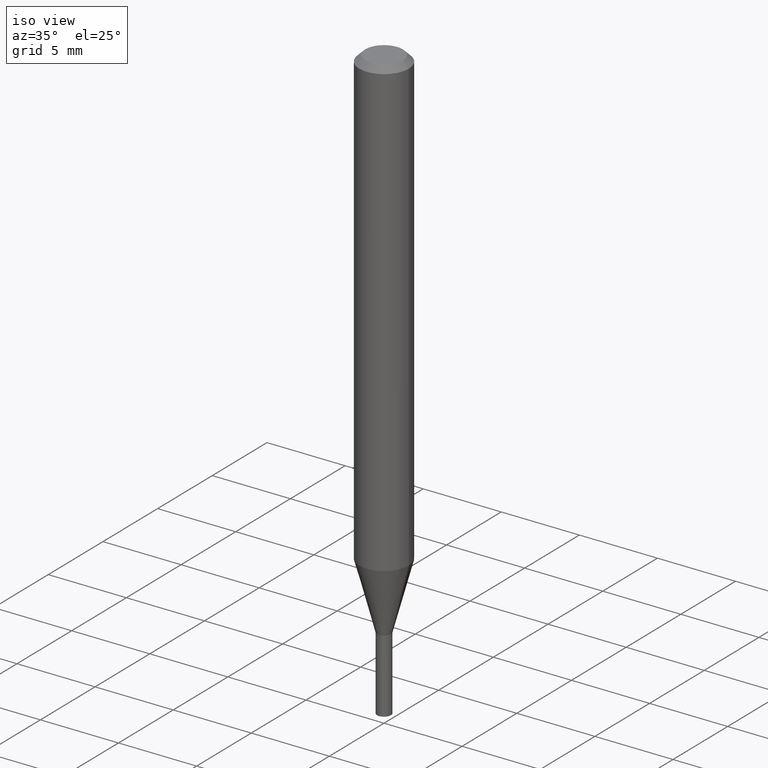
[diagram: clean part render]
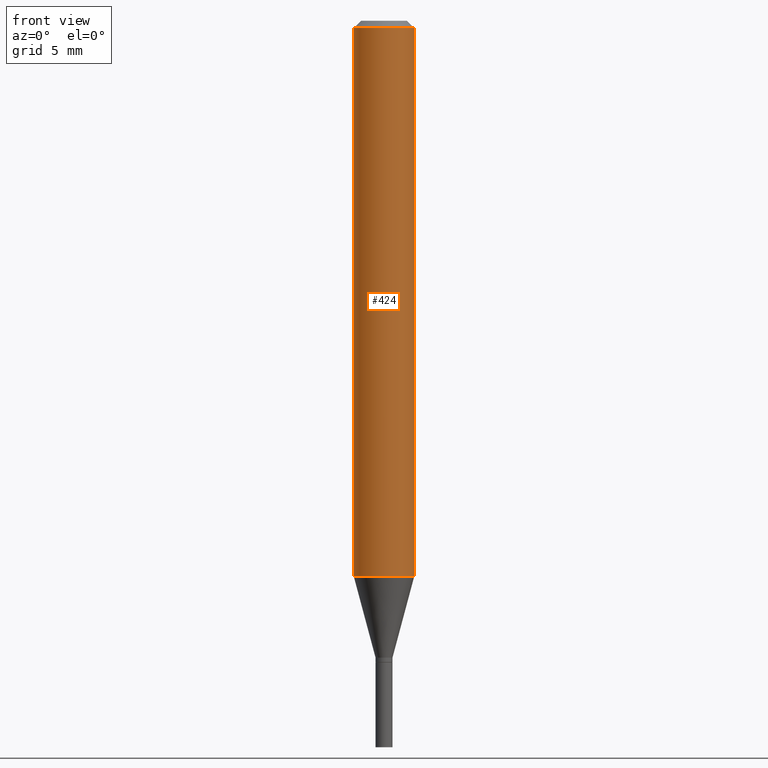
[diagram: tour spotlight — one face highlighted and labeled with its STEP entity id]
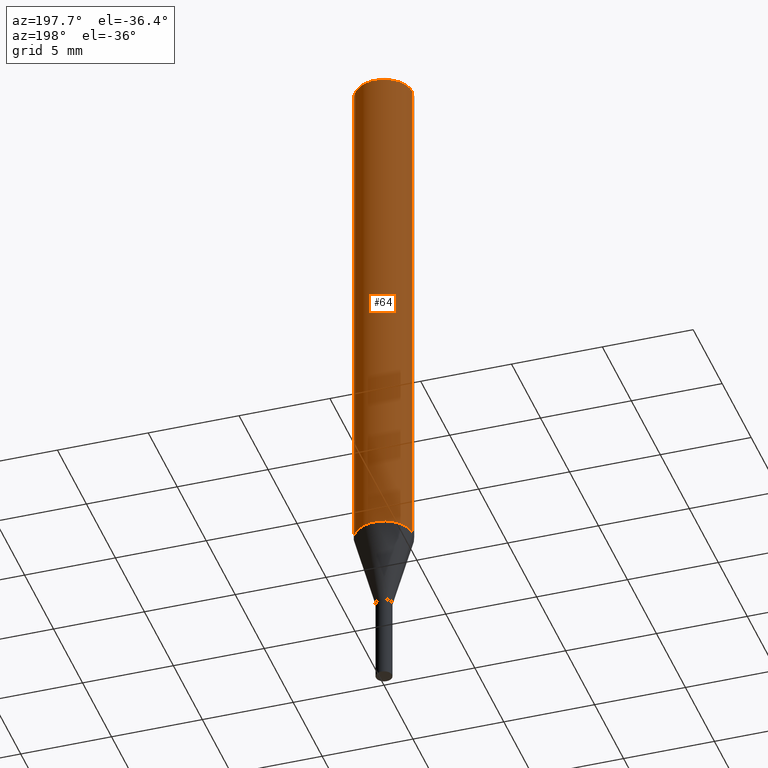
[diagram: tour spotlight — one face highlighted and labeled with its STEP entity id]
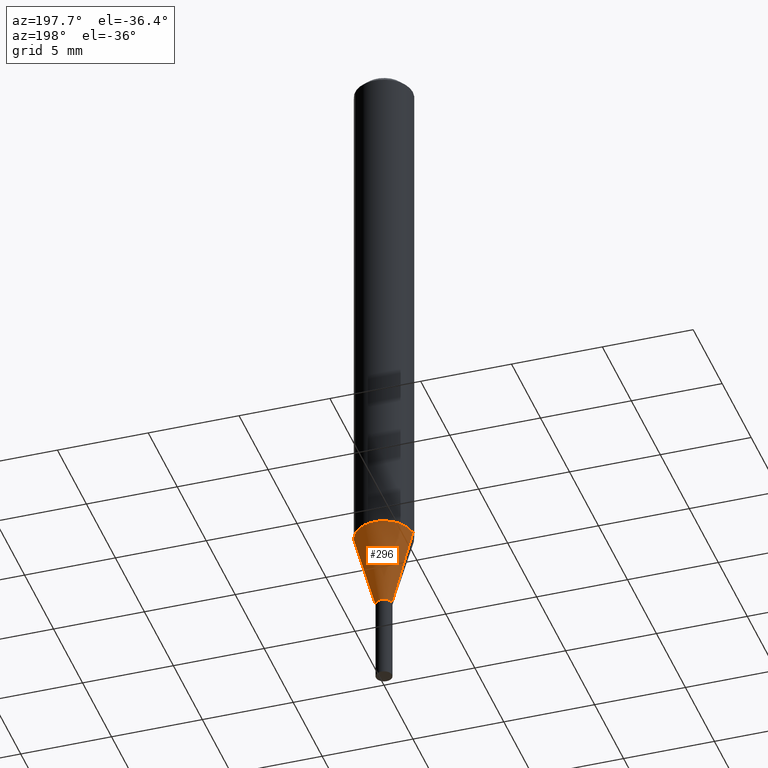
[diagram: tour spotlight — one face highlighted and labeled with its STEP entity id]
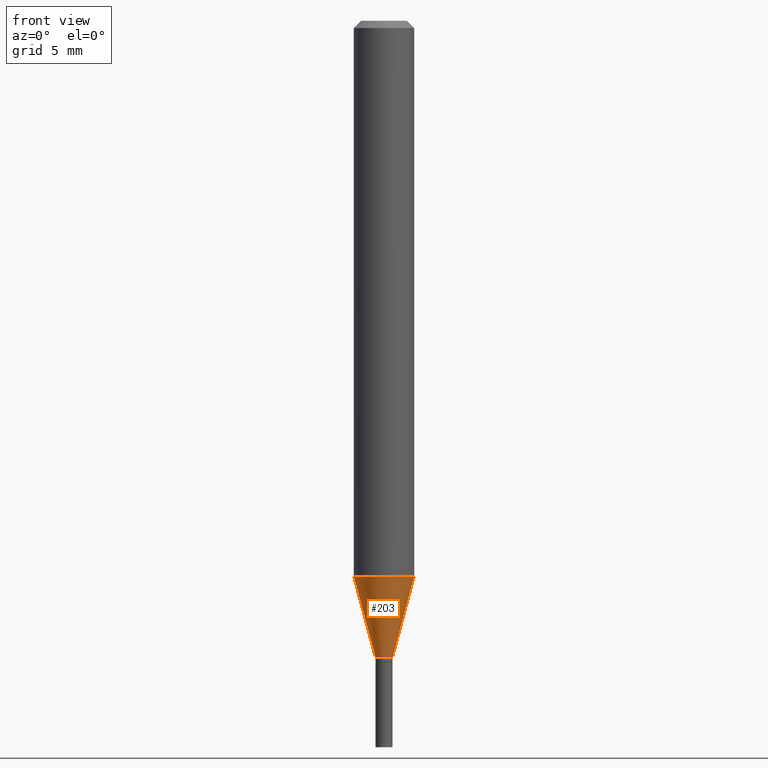
[diagram: tour spotlight — one face highlighted and labeled with its STEP entity id]
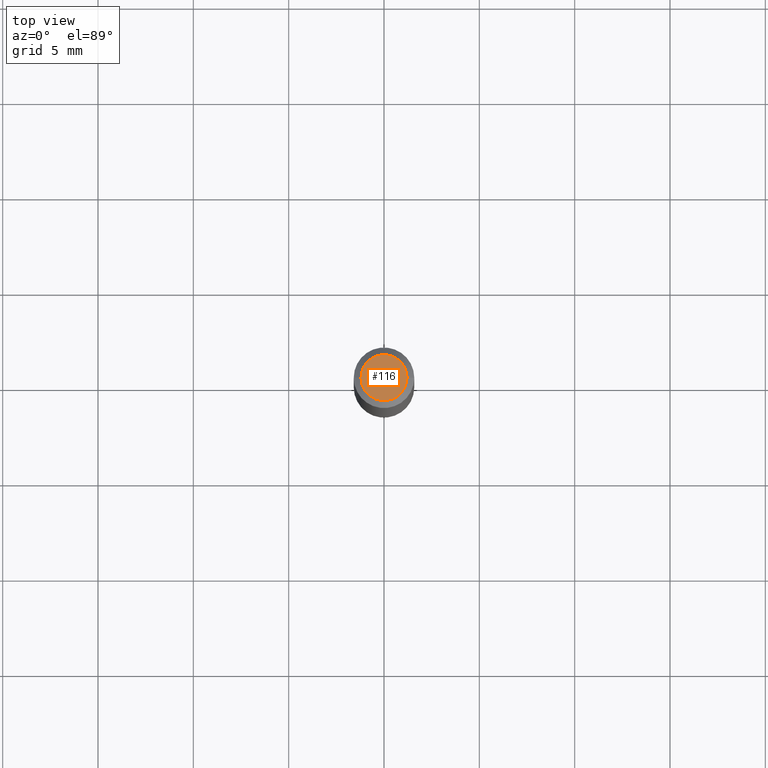
[diagram: tour spotlight — one face highlighted and labeled with its STEP entity id]
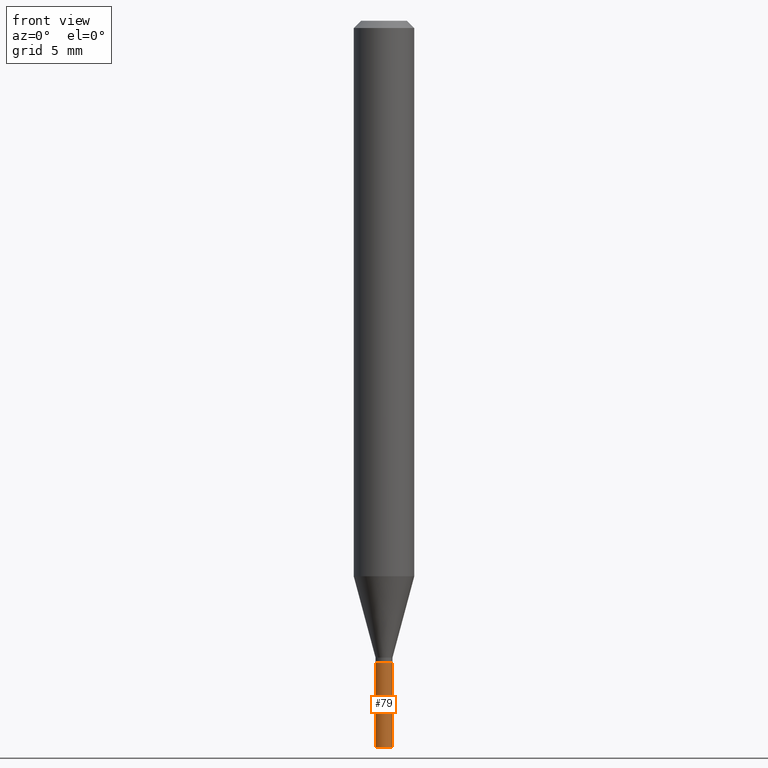
[diagram: tour spotlight — one face highlighted and labeled with its STEP entity id]
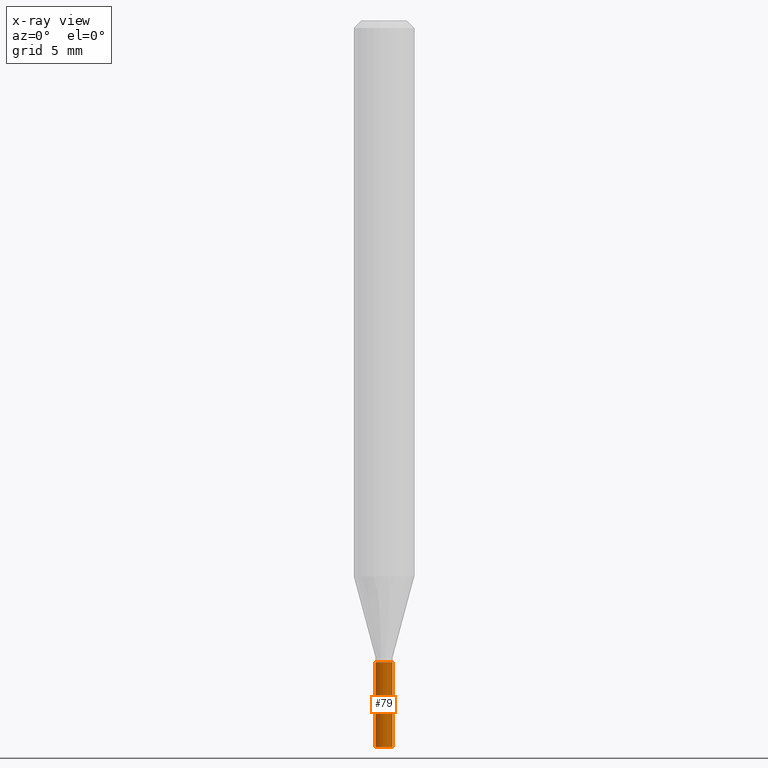
[diagram: x-ray of the same camera — body ghosted, this tour face saturated]
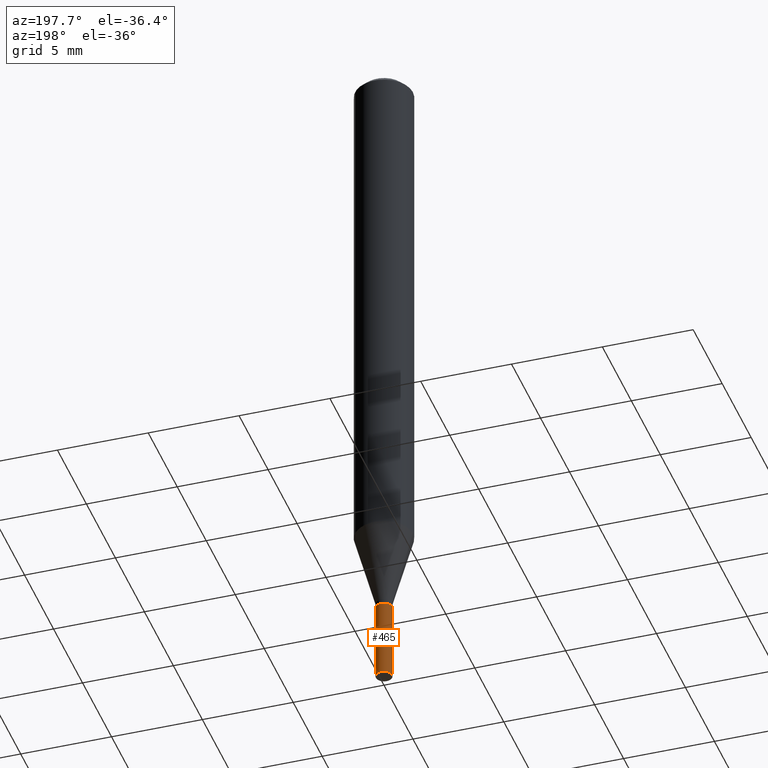
[diagram: tour spotlight — one face highlighted and labeled with its STEP entity id]
A machine part: a face-by-face anatomy tour. The part has 16 B-rep faces; the first image is the clean iso view, then the 7 largest visible faces are spotlighted one at a time (largest first), each with its STEP entity span.

Face 1 — front view, entity #424. In plain terms, the highlighted cylindrical surface (edge-blend (fillet) strip) has radius 1.5875 mm, axis along (-0, 0, 1).
Definition (entity closure, byte-faithful):
#3 = VERTEX_POINT ( 'NONE', #448 ) ;
#22 = FACE_OUTER_BOUND ( 'NONE', #402, .T. ) ;
#44 = ORIENTED_EDGE ( 'NONE', *, *, #172, .F. ) ;
#51 = DIRECTION ( 'NONE',  ( -2.445468806185136877E-29, 3.491481338843145188E-15, 1.000000000000000000 ) ) ;
#75 = LINE ( 'NONE', #276, #232 ) ;
#101 = DIRECTION ( 'NONE',  ( -2.445468806185136597E-29, 3.491481338843145583E-15, 1.000000000000000000 ) ) ;
#109 = EDGE_CURVE ( 'NONE', #285, #351, #149, .T. ) ;
#146 = EDGE_CURVE ( 'NONE', #351, #3, #75, .T. ) ;
#147 = CARTESIAN_POINT ( 'NONE',  ( -0.06250000000000000000, 4.440892098500626162E-16, -3.074334431409316114E-30 ) ) ;
#148 = CYLINDRICAL_SURFACE ( 'NONE', #162, 0.06250000000000000000 ) ;
#149 = CIRCLE ( 'NONE', #302, 0.06250000000000000000 ) ;
#162 = AXIS2_PLACEMENT_3D ( 'NONE', #185, #294, #404 ) ;
#166 = CARTESIAN_POINT ( 'NONE',  ( 2.805093857648105746E-29, -4.004930601817881115E-15, -1.147057713659400457 ) ) ;
#172 = EDGE_CURVE ( 'NONE', #221, #3, #413, .T. ) ;
#185 = CARTESIAN_POINT ( 'NONE',  ( 0.000000000000000000, 0.000000000000000000, 0.000000000000000000 ) ) ;
#221 = VERTEX_POINT ( 'NONE', #456 ) ;
#232 = VECTOR ( 'NONE', #237, 39.37007874015748143 ) ;
#237 = DIRECTION ( 'NONE',  ( -2.445468806185136877E-29, 3.491481338843145188E-15, 1.000000000000000000 ) ) ;
#241 = DIRECTION ( 'NONE',  ( 1.000000000000000000, -6.982962677686266711E-15, 0.000000000000000000 ) ) ;
#243 = ORIENTED_EDGE ( 'NONE', *, *, #279, .F. ) ;
#248 = ORIENTED_EDGE ( 'NONE', *, *, #146, .T. ) ;
#273 = DIRECTION ( 'NONE',  ( -2.445468806185136597E-29, 3.491481338843145583E-15, 1.000000000000000000 ) ) ;
#276 = CARTESIAN_POINT ( 'NONE',  ( 0.06250000000000000000, -4.364351673553916694E-16, 3.047610484872459871E-30 ) ) ;
#279 = EDGE_CURVE ( 'NONE', #285, #221, #439, .T. ) ;
#282 = CARTESIAN_POINT ( 'NONE',  ( 3.668203209277705088E-31, -5.237222008264718399E-17, -0.01499999999999999944 ) ) ;
#285 = VERTEX_POINT ( 'NONE', #444 ) ;
#287 = VECTOR ( 'NONE', #51, 39.37007874015748143 ) ;
#294 = DIRECTION ( 'NONE',  ( -2.445468806185136597E-29, 3.491481338843145583E-15, 1.000000000000000000 ) ) ;
#302 = AXIS2_PLACEMENT_3D ( 'NONE', #166, #101, #338 ) ;
#303 = CARTESIAN_POINT ( 'NONE',  ( 0.06250000000000000000, -4.441365769173271995E-15, -1.147057713659400457 ) ) ;
#310 = AXIS2_PLACEMENT_3D ( 'NONE', #282, #273, #241 ) ;
#338 = DIRECTION ( 'NONE',  ( 1.000000000000000000, -6.982962677686262766E-15, 0.000000000000000000 ) ) ;
#351 = VERTEX_POINT ( 'NONE', #303 ) ;
#366 = ORIENTED_EDGE ( 'NONE', *, *, #109, .T. ) ;
#402 = EDGE_LOOP ( 'NONE', ( #243, #366, #248, #44 ) ) ;
#404 = DIRECTION ( 'NONE',  ( 1.000000000000000000, -6.982962677686266711E-15, 4.876176775795935793E-29 ) ) ;
#413 = CIRCLE ( 'NONE', #310, 0.06250000000000000000 ) ;
#424 = ADVANCED_FACE ( 'NONE', ( #22 ), #148, .T. ) ;
#439 = LINE ( 'NONE', #147, #287 ) ;
#444 = CARTESIAN_POINT ( 'NONE',  ( -0.06250000000000000000, -3.560841391967817710E-15, -1.147057713659400457 ) ) ;
#448 = CARTESIAN_POINT ( 'NONE',  ( 0.06250000000000000000, -4.888073874380388472E-16, -0.01499999999999999944 ) ) ;
#456 = CARTESIAN_POINT ( 'NONE',  ( -0.06250000000000000000, -1.584562201100201481E-15, -0.01499999999999999944 ) ) ;

Face 2 — auxiliary view, entity #64. In plain terms, the highlighted cylindrical surface (edge-blend (fillet) strip) has radius 1.5875 mm, axis along (-0, 0, 1).
Definition (entity closure, byte-faithful):
#3 = VERTEX_POINT ( 'NONE', #448 ) ;
#26 = ORIENTED_EDGE ( 'NONE', *, *, #446, .F. ) ;
#28 = DIRECTION ( 'NONE',  ( 1.000000000000000000, -6.982962677686266711E-15, 4.876176775795935793E-29 ) ) ;
#51 = DIRECTION ( 'NONE',  ( -2.445468806185136877E-29, 3.491481338843145188E-15, 1.000000000000000000 ) ) ;
#64 = ADVANCED_FACE ( 'NONE', ( #110 ), #154, .T. ) ;
#67 = DIRECTION ( 'NONE',  ( -2.445468806185136597E-29, 3.491481338843145583E-15, 1.000000000000000000 ) ) ;
#75 = LINE ( 'NONE', #276, #232 ) ;
#91 = ORIENTED_EDGE ( 'NONE', *, *, #195, .T. ) ;
#110 = FACE_OUTER_BOUND ( 'NONE', #371, .T. ) ;
#135 = CIRCLE ( 'NONE', #398, 0.06250000000000000000 ) ;
#146 = EDGE_CURVE ( 'NONE', #351, #3, #75, .T. ) ;
#147 = CARTESIAN_POINT ( 'NONE',  ( -0.06250000000000000000, 4.440892098500626162E-16, -3.074334431409316114E-30 ) ) ;
#154 = CYLINDRICAL_SURFACE ( 'NONE', #178, 0.06250000000000000000 ) ;
#158 = DIRECTION ( 'NONE',  ( 1.000000000000000000, -6.982962677686266711E-15, 0.000000000000000000 ) ) ;
#178 = AXIS2_PLACEMENT_3D ( 'NONE', #343, #67, #28 ) ;
#195 = EDGE_CURVE ( 'NONE', #351, #285, #271, .T. ) ;
#221 = VERTEX_POINT ( 'NONE', #456 ) ;
#232 = VECTOR ( 'NONE', #237, 39.37007874015748143 ) ;
#235 = DIRECTION ( 'NONE',  ( 1.000000000000000000, -6.982962677686262766E-15, 0.000000000000000000 ) ) ;
#237 = DIRECTION ( 'NONE',  ( -2.445468806185136877E-29, 3.491481338843145188E-15, 1.000000000000000000 ) ) ;
#238 = ORIENTED_EDGE ( 'NONE', *, *, #146, .F. ) ;
#271 = CIRCLE ( 'NONE', #441, 0.06250000000000000000 ) ;
#276 = CARTESIAN_POINT ( 'NONE',  ( 0.06250000000000000000, -4.364351673553916694E-16, 3.047610484872459871E-30 ) ) ;
#279 = EDGE_CURVE ( 'NONE', #285, #221, #439, .T. ) ;
#285 = VERTEX_POINT ( 'NONE', #444 ) ;
#287 = VECTOR ( 'NONE', #51, 39.37007874015748143 ) ;
#303 = CARTESIAN_POINT ( 'NONE',  ( 0.06250000000000000000, -4.441365769173271995E-15, -1.147057713659400457 ) ) ;
#314 = DIRECTION ( 'NONE',  ( -2.445468806185136597E-29, 3.491481338843145583E-15, 1.000000000000000000 ) ) ;
#320 = ORIENTED_EDGE ( 'NONE', *, *, #279, .T. ) ;
#322 = CARTESIAN_POINT ( 'NONE',  ( 3.668203209277705088E-31, -5.237222008264718399E-17, -0.01499999999999999944 ) ) ;
#343 = CARTESIAN_POINT ( 'NONE',  ( 0.000000000000000000, 0.000000000000000000, 0.000000000000000000 ) ) ;
#351 = VERTEX_POINT ( 'NONE', #303 ) ;
#368 = DIRECTION ( 'NONE',  ( -2.445468806185136597E-29, 3.491481338843145583E-15, 1.000000000000000000 ) ) ;
#371 = EDGE_LOOP ( 'NONE', ( #91, #320, #26, #238 ) ) ;
#398 = AXIS2_PLACEMENT_3D ( 'NONE', #322, #368, #158 ) ;
#422 = CARTESIAN_POINT ( 'NONE',  ( 2.805093857648105746E-29, -4.004930601817881115E-15, -1.147057713659400457 ) ) ;
#439 = LINE ( 'NONE', #147, #287 ) ;
#441 = AXIS2_PLACEMENT_3D ( 'NONE', #422, #314, #235 ) ;
#444 = CARTESIAN_POINT ( 'NONE',  ( -0.06250000000000000000, -3.560841391967817710E-15, -1.147057713659400457 ) ) ;
#446 = EDGE_CURVE ( 'NONE', #3, #221, #135, .T. ) ;
#448 = CARTESIAN_POINT ( 'NONE',  ( 0.06250000000000000000, -4.888073874380388472E-16, -0.01499999999999999944 ) ) ;
#456 = CARTESIAN_POINT ( 'NONE',  ( -0.06250000000000000000, -1.584562201100201481E-15, -0.01499999999999999944 ) ) ;

Face 3 — auxiliary view, entity #296. In plain terms, the highlighted conical surface has half-angle 15 deg.
Definition (entity closure, byte-faithful):
#6 = CONICAL_SURFACE ( 'NONE', #94, 0.01749999999999991840, 0.2617993877991495744 ) ;
#15 = VECTOR ( 'NONE', #428, 39.37007874015748143 ) ;
#20 = LINE ( 'NONE', #257, #264 ) ;
#23 = ORIENTED_EDGE ( 'NONE', *, *, #268, .T. ) ;
#61 = VERTEX_POINT ( 'NONE', #90 ) ;
#71 = CIRCLE ( 'NONE', #239, 0.01749999999999991840 ) ;
#90 = CARTESIAN_POINT ( 'NONE',  ( -0.01749999999999991840, -4.013897186894268537E-15, -1.314999999999999947 ) ) ;
#94 = AXIS2_PLACEMENT_3D ( 'NONE', #220, #118, #291 ) ;
#97 = CARTESIAN_POINT ( 'NONE',  ( 0.01749999999999991840, -4.713499807438245807E-15, -1.314999999999999947 ) ) ;
#118 = DIRECTION ( 'NONE',  ( -2.445468806185136597E-29, 3.491481338843145583E-15, 1.000000000000000000 ) ) ;
#130 = EDGE_CURVE ( 'NONE', #152, #61, #71, .T. ) ;
#152 = VERTEX_POINT ( 'NONE', #313 ) ;
#155 = DIRECTION ( 'NONE',  ( -0.2588190451025209060, 5.211531920934547097E-15, 0.9659258262890682012 ) ) ;
#195 = EDGE_CURVE ( 'NONE', #351, #285, #271, .T. ) ;
#215 = FACE_OUTER_BOUND ( 'NONE', #354, .T. ) ;
#220 = CARTESIAN_POINT ( 'NONE',  ( 3.215791480133454670E-29, -4.591297960578735824E-15, -1.314999999999999947 ) ) ;
#234 = CARTESIAN_POINT ( 'NONE',  ( 3.215791480133454670E-29, -4.591297960578735824E-15, -1.314999999999999947 ) ) ;
#235 = DIRECTION ( 'NONE',  ( 1.000000000000000000, -6.982962677686262766E-15, 0.000000000000000000 ) ) ;
#239 = AXIS2_PLACEMENT_3D ( 'NONE', #234, #388, #347 ) ;
#257 = CARTESIAN_POINT ( 'NONE',  ( -0.01749999999999991840, -4.466952981820719364E-15, -1.314999999999999947 ) ) ;
#258 = ORIENTED_EDGE ( 'NONE', *, *, #130, .T. ) ;
#263 = LINE ( 'NONE', #97, #15 ) ;
#264 = VECTOR ( 'NONE', #155, 39.37007874015748143 ) ;
#268 = EDGE_CURVE ( 'NONE', #61, #285, #20, .T. ) ;
#271 = CIRCLE ( 'NONE', #441, 0.06250000000000000000 ) ;
#285 = VERTEX_POINT ( 'NONE', #444 ) ;
#291 = DIRECTION ( 'NONE',  ( 1.000000000000000000, -6.982962677686281699E-15, 0.000000000000000000 ) ) ;
#296 = ADVANCED_FACE ( 'NONE', ( #215 ), #6, .T. ) ;
#303 = CARTESIAN_POINT ( 'NONE',  ( 0.06250000000000000000, -4.441365769173271995E-15, -1.147057713659400457 ) ) ;
#313 = CARTESIAN_POINT ( 'NONE',  ( 0.01749999999999991840, -4.713499807438245807E-15, -1.314999999999999947 ) ) ;
#314 = DIRECTION ( 'NONE',  ( -2.445468806185136597E-29, 3.491481338843145583E-15, 1.000000000000000000 ) ) ;
#347 = DIRECTION ( 'NONE',  ( 1.000000000000000000, -6.982962677686281699E-15, 0.000000000000000000 ) ) ;
#351 = VERTEX_POINT ( 'NONE', #303 ) ;
#354 = EDGE_LOOP ( 'NONE', ( #258, #23, #440, #445 ) ) ;
#358 = EDGE_CURVE ( 'NONE', #152, #351, #263, .T. ) ;
#388 = DIRECTION ( 'NONE',  ( -2.445468806185136597E-29, 3.491481338843145583E-15, 1.000000000000000000 ) ) ;
#422 = CARTESIAN_POINT ( 'NONE',  ( 2.805093857648105746E-29, -4.004930601817881115E-15, -1.147057713659400457 ) ) ;
#428 = DIRECTION ( 'NONE',  ( 0.2588190451025209060, 1.565188264969625123E-15, 0.9659258262890682012 ) ) ;
#440 = ORIENTED_EDGE ( 'NONE', *, *, #195, .F. ) ;
#441 = AXIS2_PLACEMENT_3D ( 'NONE', #422, #314, #235 ) ;
#444 = CARTESIAN_POINT ( 'NONE',  ( -0.06250000000000000000, -3.560841391967817710E-15, -1.147057713659400457 ) ) ;
#445 = ORIENTED_EDGE ( 'NONE', *, *, #358, .F. ) ;

Face 4 — front view, entity #203. In plain terms, the highlighted conical surface has half-angle 15 deg.
Definition (entity closure, byte-faithful):
#15 = VECTOR ( 'NONE', #428, 39.37007874015748143 ) ;
#20 = LINE ( 'NONE', #257, #264 ) ;
#36 = EDGE_CURVE ( 'NONE', #61, #152, #202, .T. ) ;
#46 = DIRECTION ( 'NONE',  ( -2.445468806185136597E-29, 3.491481338843145583E-15, 1.000000000000000000 ) ) ;
#61 = VERTEX_POINT ( 'NONE', #90 ) ;
#62 = EDGE_LOOP ( 'NONE', ( #190, #139, #176, #113 ) ) ;
#90 = CARTESIAN_POINT ( 'NONE',  ( -0.01749999999999991840, -4.013897186894268537E-15, -1.314999999999999947 ) ) ;
#97 = CARTESIAN_POINT ( 'NONE',  ( 0.01749999999999991840, -4.713499807438245807E-15, -1.314999999999999947 ) ) ;
#101 = DIRECTION ( 'NONE',  ( -2.445468806185136597E-29, 3.491481338843145583E-15, 1.000000000000000000 ) ) ;
#109 = EDGE_CURVE ( 'NONE', #285, #351, #149, .T. ) ;
#113 = ORIENTED_EDGE ( 'NONE', *, *, #109, .F. ) ;
#120 = CONICAL_SURFACE ( 'NONE', #365, 0.01749999999999991840, 0.2617993877991495744 ) ;
#139 = ORIENTED_EDGE ( 'NONE', *, *, #36, .T. ) ;
#149 = CIRCLE ( 'NONE', #302, 0.06250000000000000000 ) ;
#152 = VERTEX_POINT ( 'NONE', #313 ) ;
#155 = DIRECTION ( 'NONE',  ( -0.2588190451025209060, 5.211531920934547097E-15, 0.9659258262890682012 ) ) ;
#166 = CARTESIAN_POINT ( 'NONE',  ( 2.805093857648105746E-29, -4.004930601817881115E-15, -1.147057713659400457 ) ) ;
#173 = FACE_OUTER_BOUND ( 'NONE', #62, .T. ) ;
#176 = ORIENTED_EDGE ( 'NONE', *, *, #358, .T. ) ;
#190 = ORIENTED_EDGE ( 'NONE', *, *, #268, .F. ) ;
#202 = CIRCLE ( 'NONE', #461, 0.01749999999999991840 ) ;
#203 = ADVANCED_FACE ( 'NONE', ( #173 ), #120, .T. ) ;
#257 = CARTESIAN_POINT ( 'NONE',  ( -0.01749999999999991840, -4.466952981820719364E-15, -1.314999999999999947 ) ) ;
#263 = LINE ( 'NONE', #97, #15 ) ;
#264 = VECTOR ( 'NONE', #155, 39.37007874015748143 ) ;
#268 = EDGE_CURVE ( 'NONE', #61, #285, #20, .T. ) ;
#269 = CARTESIAN_POINT ( 'NONE',  ( 3.215791480133454670E-29, -4.591297960578735824E-15, -1.314999999999999947 ) ) ;
#281 = CARTESIAN_POINT ( 'NONE',  ( 3.215791480133454670E-29, -4.591297960578735824E-15, -1.314999999999999947 ) ) ;
#285 = VERTEX_POINT ( 'NONE', #444 ) ;
#302 = AXIS2_PLACEMENT_3D ( 'NONE', #166, #101, #338 ) ;
#303 = CARTESIAN_POINT ( 'NONE',  ( 0.06250000000000000000, -4.441365769173271995E-15, -1.147057713659400457 ) ) ;
#313 = CARTESIAN_POINT ( 'NONE',  ( 0.01749999999999991840, -4.713499807438245807E-15, -1.314999999999999947 ) ) ;
#338 = DIRECTION ( 'NONE',  ( 1.000000000000000000, -6.982962677686262766E-15, 0.000000000000000000 ) ) ;
#339 = DIRECTION ( 'NONE',  ( 1.000000000000000000, -6.982962677686281699E-15, 0.000000000000000000 ) ) ;
#349 = DIRECTION ( 'NONE',  ( 1.000000000000000000, -6.982962677686281699E-15, 0.000000000000000000 ) ) ;
#351 = VERTEX_POINT ( 'NONE', #303 ) ;
#358 = EDGE_CURVE ( 'NONE', #152, #351, #263, .T. ) ;
#365 = AXIS2_PLACEMENT_3D ( 'NONE', #281, #46, #339 ) ;
#428 = DIRECTION ( 'NONE',  ( 0.2588190451025209060, 1.565188264969625123E-15, 0.9659258262890682012 ) ) ;
#444 = CARTESIAN_POINT ( 'NONE',  ( -0.06250000000000000000, -3.560841391967817710E-15, -1.147057713659400457 ) ) ;
#460 = DIRECTION ( 'NONE',  ( -2.445468806185136597E-29, 3.491481338843145583E-15, 1.000000000000000000 ) ) ;
#461 = AXIS2_PLACEMENT_3D ( 'NONE', #269, #460, #349 ) ;

Face 5 — top view, entity #116. In plain terms, the highlighted planar face has unit normal (0, -0, -1).
Definition (entity closure, byte-faithful):
#4 = DIRECTION ( 'NONE',  ( 1.000000000000000000, -6.982962677686267499E-15, 4.852736867747366768E-29 ) ) ;
#29 = AXIS2_PLACEMENT_3D ( 'NONE', #423, #33, #4 ) ;
#33 = DIRECTION ( 'NONE',  ( -2.445468806185136597E-29, 3.491481338843145583E-15, 1.000000000000000000 ) ) ;
#47 = EDGE_LOOP ( 'NONE', ( #391, #144 ) ) ;
#52 = VERTEX_POINT ( 'NONE', #117 ) ;
#63 = CIRCLE ( 'NONE', #29, 0.04749999999999999362 ) ;
#77 = CIRCLE ( 'NONE', #186, 0.04749999999999999362 ) ;
#92 = FACE_OUTER_BOUND ( 'NONE', #47, .T. ) ;
#116 = ADVANCED_FACE ( 'NONE', ( #92 ), #125, .F. ) ;
#117 = CARTESIAN_POINT ( 'NONE',  ( 0.04749999999999999362, -4.035134999187586019E-16, -4.684051019975741414E-16 ) ) ;
#122 = DIRECTION ( 'NONE',  ( 1.000000000000000000, -6.982962677686267499E-15, 4.852736867747366768E-29 ) ) ;
#125 = PLANE ( 'NONE',  #403 ) ;
#134 = EDGE_CURVE ( 'NONE', #300, #52, #63, .T. ) ;
#144 = ORIENTED_EDGE ( 'NONE', *, *, #411, .T. ) ;
#186 = AXIS2_PLACEMENT_3D ( 'NONE', #290, #433, #122 ) ;
#267 = DIRECTION ( 'NONE',  ( 2.438088387897960049E-29, -3.491481338843145188E-15, -1.000000000000000000 ) ) ;
#270 = DIRECTION ( 'NONE',  ( -1.000000000000000000, 6.982962677686265922E-15, -4.876176775795935793E-29 ) ) ;
#290 = CARTESIAN_POINT ( 'NONE',  ( 1.145470065593040868E-44, -1.635427672643458845E-30, -4.684051019975766066E-16 ) ) ;
#300 = VERTEX_POINT ( 'NONE', #406 ) ;
#391 = ORIENTED_EDGE ( 'NONE', *, *, #134, .T. ) ;
#403 = AXIS2_PLACEMENT_3D ( 'NONE', #454, #267, #270 ) ;
#406 = CARTESIAN_POINT ( 'NONE',  ( -0.04749999999999999362, 3.578768372314202617E-16, -4.684051019975790718E-16 ) ) ;
#411 = EDGE_CURVE ( 'NONE', #52, #300, #77, .T. ) ;
#423 = CARTESIAN_POINT ( 'NONE',  ( 1.145470065593040868E-44, -1.635427672643458845E-30, -4.684051019975766066E-16 ) ) ;
#433 = DIRECTION ( 'NONE',  ( -2.445468806185136597E-29, 3.491481338843145583E-15, 1.000000000000000000 ) ) ;
#454 = CARTESIAN_POINT ( 'NONE',  ( 3.316907271900976096E-16, 0.04749999999999999362, -4.000479145938377490E-16 ) ) ;

Face 6 — front view, entity #79. An x-ray twin of the same camera follows (body ghosted, this face saturated) — the face is partly hidden behind the body. In plain terms, the highlighted cylindrical surface (edge-blend (fillet) strip) has radius 0.4445 mm, axis along (-0, 0, 1).
Definition (entity closure, byte-faithful):
#31 = LINE ( 'NONE', #335, #425 ) ;
#32 = DIRECTION ( 'NONE',  ( -2.445468806185136597E-29, 3.491481338843145583E-15, 1.000000000000000000 ) ) ;
#43 = CIRCLE ( 'NONE', #350, 0.01750000000000000167 ) ;
#48 = CARTESIAN_POINT ( 'NONE',  ( 3.240246168195306775E-29, -4.626212773967169051E-15, -1.325000000000000178 ) ) ;
#79 = ADVANCED_FACE ( 'NONE', ( #96 ), #380, .T. ) ;
#80 = CARTESIAN_POINT ( 'NONE',  ( 3.668203209277704895E-29, -5.237222008264718177E-15, -1.500000000000000222 ) ) ;
#96 = FACE_OUTER_BOUND ( 'NONE', #208, .T. ) ;
#108 = ORIENTED_EDGE ( 'NONE', *, *, #457, .T. ) ;
#114 = DIRECTION ( 'NONE',  ( 1.000000000000000000, -6.982962677686248567E-15, 0.000000000000000000 ) ) ;
#140 = ORIENTED_EDGE ( 'NONE', *, *, #438, .T. ) ;
#141 = VECTOR ( 'NONE', #399, 39.37007874015748143 ) ;
#145 = CARTESIAN_POINT ( 'NONE',  ( 0.01750000000000000167, -4.748414620826678245E-15, -1.325000000000000178 ) ) ;
#174 = ORIENTED_EDGE ( 'NONE', *, *, #340, .F. ) ;
#180 = VERTEX_POINT ( 'NONE', #463 ) ;
#183 = VERTEX_POINT ( 'NONE', #145 ) ;
#188 = DIRECTION ( 'NONE',  ( 1.000000000000000000, -6.982962677686248567E-15, 0.000000000000000000 ) ) ;
#191 = ORIENTED_EDGE ( 'NONE', *, *, #307, .F. ) ;
#194 = CIRCLE ( 'NONE', #464, 0.01750000000000000167 ) ;
#196 = CARTESIAN_POINT ( 'NONE',  ( 0.01750000000000000167, -5.359423855124228160E-15, -1.500000000000000222 ) ) ;
#208 = EDGE_LOOP ( 'NONE', ( #174, #108, #140, #191 ) ) ;
#223 = LINE ( 'NONE', #396, #141 ) ;
#247 = DIRECTION ( 'NONE',  ( -2.445468806185136597E-29, 3.491481338843145583E-15, 1.000000000000000000 ) ) ;
#305 = DIRECTION ( 'NONE',  ( 1.000000000000000000, -6.982962677686265922E-15, 4.876176775795936353E-29 ) ) ;
#307 = EDGE_CURVE ( 'NONE', #324, #183, #43, .T. ) ;
#311 = AXIS2_PLACEMENT_3D ( 'NONE', #345, #32, #305 ) ;
#324 = VERTEX_POINT ( 'NONE', #450 ) ;
#330 = VERTEX_POINT ( 'NONE', #196 ) ;
#335 = CARTESIAN_POINT ( 'NONE',  ( -0.01750000000000000167, 1.243449787580175444E-16, -8.608136407946085539E-31 ) ) ;
#340 = EDGE_CURVE ( 'NONE', #180, #324, #31, .T. ) ;
#345 = CARTESIAN_POINT ( 'NONE',  ( 0.000000000000000000, 0.000000000000000000, 0.000000000000000000 ) ) ;
#350 = AXIS2_PLACEMENT_3D ( 'NONE', #48, #247, #188 ) ;
#380 = CYLINDRICAL_SURFACE ( 'NONE', #311, 0.01750000000000000167 ) ;
#396 = CARTESIAN_POINT ( 'NONE',  ( 0.01750000000000000167, -1.222018468595096625E-16, 8.533309357642889039E-31 ) ) ;
#399 = DIRECTION ( 'NONE',  ( -2.445468806185136877E-29, 3.491481338843145188E-15, 1.000000000000000000 ) ) ;
#425 = VECTOR ( 'NONE', #447, 39.37007874015748143 ) ;
#436 = DIRECTION ( 'NONE',  ( -2.445468806185136597E-29, 3.491481338843145583E-15, 1.000000000000000000 ) ) ;
#438 = EDGE_CURVE ( 'NONE', #330, #183, #223, .T. ) ;
#447 = DIRECTION ( 'NONE',  ( -2.445468806185136877E-29, 3.491481338843145188E-15, 1.000000000000000000 ) ) ;
#450 = CARTESIAN_POINT ( 'NONE',  ( -0.01750000000000000167, -4.807372412357926760E-15, -1.325000000000000178 ) ) ;
#457 = EDGE_CURVE ( 'NONE', #180, #330, #194, .T. ) ;
#463 = CARTESIAN_POINT ( 'NONE',  ( -0.01750000000000000167, -4.807372412357926760E-15, -1.500000000000000222 ) ) ;
#464 = AXIS2_PLACEMENT_3D ( 'NONE', #80, #436, #114 ) ;

Face 7 — auxiliary view, entity #465. In plain terms, the highlighted cylindrical surface (edge-blend (fillet) strip) has radius 0.4445 mm, axis along (-0, 0, 1).
Definition (entity closure, byte-faithful):
#24 = EDGE_CURVE ( 'NONE', #183, #324, #127, .T. ) ;
#31 = LINE ( 'NONE', #335, #425 ) ;
#35 = ORIENTED_EDGE ( 'NONE', *, *, #316, .T. ) ;
#49 = CARTESIAN_POINT ( 'NONE',  ( 3.240246168195306775E-29, -4.626212773967169051E-15, -1.325000000000000178 ) ) ;
#76 = CARTESIAN_POINT ( 'NONE',  ( 0.000000000000000000, 0.000000000000000000, 0.000000000000000000 ) ) ;
#115 = EDGE_LOOP ( 'NONE', ( #35, #427, #435, #327 ) ) ;
#127 = CIRCLE ( 'NONE', #246, 0.01750000000000000167 ) ;
#141 = VECTOR ( 'NONE', #399, 39.37007874015748143 ) ;
#145 = CARTESIAN_POINT ( 'NONE',  ( 0.01750000000000000167, -4.748414620826678245E-15, -1.325000000000000178 ) ) ;
#180 = VERTEX_POINT ( 'NONE', #463 ) ;
#183 = VERTEX_POINT ( 'NONE', #145 ) ;
#184 = DIRECTION ( 'NONE',  ( -2.445468806185136597E-29, 3.491481338843145583E-15, 1.000000000000000000 ) ) ;
#196 = CARTESIAN_POINT ( 'NONE',  ( 0.01750000000000000167, -5.359423855124228160E-15, -1.500000000000000222 ) ) ;
#204 = AXIS2_PLACEMENT_3D ( 'NONE', #323, #383, #344 ) ;
#214 = DIRECTION ( 'NONE',  ( 1.000000000000000000, -6.982962677686265922E-15, 4.876176775795936353E-29 ) ) ;
#218 = DIRECTION ( 'NONE',  ( -2.445468806185136597E-29, 3.491481338843145583E-15, 1.000000000000000000 ) ) ;
#223 = LINE ( 'NONE', #396, #141 ) ;
#246 = AXIS2_PLACEMENT_3D ( 'NONE', #49, #184, #455 ) ;
#297 = CIRCLE ( 'NONE', #204, 0.01750000000000000167 ) ;
#316 = EDGE_CURVE ( 'NONE', #330, #180, #297, .T. ) ;
#323 = CARTESIAN_POINT ( 'NONE',  ( 3.668203209277704895E-29, -5.237222008264718177E-15, -1.500000000000000222 ) ) ;
#324 = VERTEX_POINT ( 'NONE', #450 ) ;
#327 = ORIENTED_EDGE ( 'NONE', *, *, #438, .F. ) ;
#330 = VERTEX_POINT ( 'NONE', #196 ) ;
#335 = CARTESIAN_POINT ( 'NONE',  ( -0.01750000000000000167, 1.243449787580175444E-16, -8.608136407946085539E-31 ) ) ;
#340 = EDGE_CURVE ( 'NONE', #180, #324, #31, .T. ) ;
#344 = DIRECTION ( 'NONE',  ( 1.000000000000000000, -6.982962677686248567E-15, 0.000000000000000000 ) ) ;
#383 = DIRECTION ( 'NONE',  ( -2.445468806185136597E-29, 3.491481338843145583E-15, 1.000000000000000000 ) ) ;
#396 = CARTESIAN_POINT ( 'NONE',  ( 0.01750000000000000167, -1.222018468595096625E-16, 8.533309357642889039E-31 ) ) ;
#399 = DIRECTION ( 'NONE',  ( -2.445468806185136877E-29, 3.491481338843145188E-15, 1.000000000000000000 ) ) ;
#401 = CYLINDRICAL_SURFACE ( 'NONE', #453, 0.01750000000000000167 ) ;
#425 = VECTOR ( 'NONE', #447, 39.37007874015748143 ) ;
#427 = ORIENTED_EDGE ( 'NONE', *, *, #340, .T. ) ;
#435 = ORIENTED_EDGE ( 'NONE', *, *, #24, .F. ) ;
#438 = EDGE_CURVE ( 'NONE', #330, #183, #223, .T. ) ;
#442 = FACE_OUTER_BOUND ( 'NONE', #115, .T. ) ;
#447 = DIRECTION ( 'NONE',  ( -2.445468806185136877E-29, 3.491481338843145188E-15, 1.000000000000000000 ) ) ;
#450 = CARTESIAN_POINT ( 'NONE',  ( -0.01750000000000000167, -4.807372412357926760E-15, -1.325000000000000178 ) ) ;
#453 = AXIS2_PLACEMENT_3D ( 'NONE', #76, #218, #214 ) ;
#455 = DIRECTION ( 'NONE',  ( 1.000000000000000000, -6.982962677686248567E-15, 0.000000000000000000 ) ) ;
#463 = CARTESIAN_POINT ( 'NONE',  ( -0.01750000000000000167, -4.807372412357926760E-15, -1.500000000000000222 ) ) ;
#465 = ADVANCED_FACE ( 'NONE', ( #442 ), #401, .T. ) ;